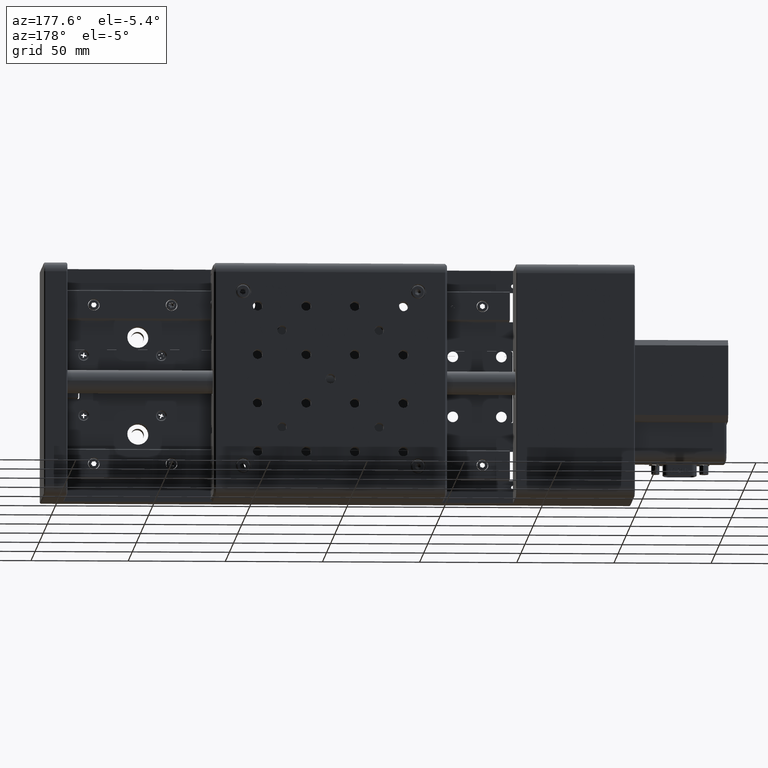
[diagram: clean part render]
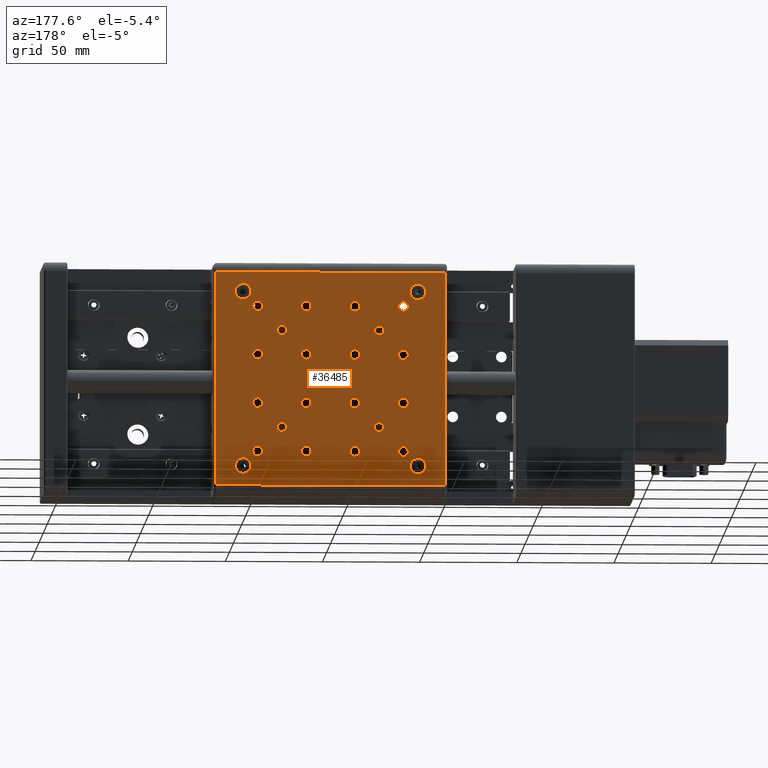
[diagram: same view with one face highlighted and labeled with its STEP entity id]
A machine part, auxiliary view. The second image highlights one B-rep face of the part: STEP entity #36485.
In plain terms, the highlighted planar face has unit normal (0, -1, 0).
Its self-contained STEP definition (entity closure, byte-faithful):
#300 = ORIENTED_EDGE ( 'NONE', *, *, #35962, .F. ) ;
#400 = ORIENTED_EDGE ( 'NONE', *, *, #23844, .F. ) ;
#439 = AXIS2_PLACEMENT_3D ( 'NONE', #16931, #5134, #2370 ) ;
#474 = CARTESIAN_POINT ( 'NONE',  ( 421.1596945975858300, 55.99999999999837300, 411.9433306992480700 ) ) ;
#515 = AXIS2_PLACEMENT_3D ( 'NONE', #19471, #13875, #7896 ) ;
#609 = CARTESIAN_POINT ( 'NONE',  ( 371.1596945975858800, 55.99999999999837300, 391.9433306992479500 ) ) ;
#612 = VERTEX_POINT ( 'NONE', #4855 ) ;
#703 = CARTESIAN_POINT ( 'NONE',  ( 363.6596945975858300, 55.99999999999839400, 471.9433306992480700 ) ) ;
#785 = CARTESIAN_POINT ( 'NONE',  ( 371.1596945975858300, 55.99999999999838700, 464.4433306992480100 ) ) ;
#941 = CIRCLE ( 'NONE', #29443, 2.500000000000002200 ) ;
#961 = EDGE_LOOP ( 'NONE', ( #26781, #31363 ) ) ;
#997 = ORIENTED_EDGE ( 'NONE', *, *, #7766, .T. ) ;
#1117 = DIRECTION ( 'NONE',  ( 0.0000000000000000000, 0.0000000000000000000, 1.000000000000000000 ) ) ;
#1133 = AXIS2_PLACEMENT_3D ( 'NONE', #26967, #18358, #35765 ) ;
#1262 = CARTESIAN_POINT ( 'NONE',  ( 371.1596945975858300, 55.99999999999838700, 436.9433306992480100 ) ) ;
#1485 = CARTESIAN_POINT ( 'NONE',  ( 446.1596945975858800, 55.99999999999838700, 461.9433306992479500 ) ) ;
#1613 = AXIS2_PLACEMENT_3D ( 'NONE', #14193, #34464, #32111 ) ;
#1804 = VERTEX_POINT ( 'NONE', #20664 ) ;
#1942 = CIRCLE ( 'NONE', #11330, 2.500000000000002200 ) ;
#1955 = DIRECTION ( 'NONE',  ( 0.0000000000000000000, 0.0000000000000000000, -1.000000000000000000 ) ) ;
#2019 = EDGE_CURVE ( 'NONE', #18841, #10620, #22187, .T. ) ;
#2284 = VERTEX_POINT ( 'NONE', #29094 ) ;
#2346 = DIRECTION ( 'NONE',  ( -1.498502485583768100E-025, 1.000000000000000000, -2.982914382744781000E-016 ) ) ;
#2370 = DIRECTION ( 'NONE',  ( 0.0000000000000000000, 0.0000000000000000000, -1.000000000000000000 ) ) ;
#2499 = ORIENTED_EDGE ( 'NONE', *, *, #14064, .F. ) ;
#2617 = AXIS2_PLACEMENT_3D ( 'NONE', #785, #6424, #15873 ) ;
#2635 = CIRCLE ( 'NONE', #14125, 2.500000000000002200 ) ;
#2643 = AXIS2_PLACEMENT_3D ( 'NONE', #4138, #7401, #16359 ) ;
#2780 = VERTEX_POINT ( 'NONE', #20351 ) ;
#2795 = CARTESIAN_POINT ( 'NONE',  ( 363.6596945975858300, 55.99999999999839400, 471.9433306992480700 ) ) ;
#2822 = EDGE_CURVE ( 'NONE', #30959, #28412, #28226, .T. ) ;
#2885 = CARTESIAN_POINT ( 'NONE',  ( 453.6596945975858300, 55.99999999999836600, 381.9433306992479500 ) ) ;
#2894 = EDGE_LOOP ( 'NONE', ( #32781, #20580 ) ) ;
#2914 = AXIS2_PLACEMENT_3D ( 'NONE', #8215, #11319, #37954 ) ;
#3088 = AXIS2_PLACEMENT_3D ( 'NONE', #15139, #6314, #21405 ) ;
#3186 = DIRECTION ( 'NONE',  ( -1.498502485583768100E-025, 1.000000000000000000, -2.982914382744781000E-016 ) ) ;
#3199 = FACE_BOUND ( 'NONE', #14497, .T. ) ;
#3356 = CARTESIAN_POINT ( 'NONE',  ( 421.1596945975858800, 55.99999999999837300, 386.9433306992480100 ) ) ;
#3547 = EDGE_LOOP ( 'NONE', ( #35625, #4966 ) ) ;
#3568 = EDGE_LOOP ( 'NONE', ( #6123, #9475 ) ) ;
#3835 = ORIENTED_EDGE ( 'NONE', *, *, #20638, .F. ) ;
#3902 = AXIS2_PLACEMENT_3D ( 'NONE', #37835, #25582, #17062 ) ;
#4066 = AXIS2_PLACEMENT_3D ( 'NONE', #703, #18288, #9683 ) ;
#4088 = LINE ( 'NONE', #14485, #33965 ) ;
#4138 = CARTESIAN_POINT ( 'NONE',  ( 408.6596945975858300, 55.99999999999838000, 426.9433306992480100 ) ) ;
#4624 = AXIS2_PLACEMENT_3D ( 'NONE', #23843, #38733, #32887 ) ;
#4810 = AXIS2_PLACEMENT_3D ( 'NONE', #34337, #7335, #37203 ) ;
#4855 = CARTESIAN_POINT ( 'NONE',  ( 421.1596945975858300, 55.99999999999837300, 416.9433306992480700 ) ) ;
#4907 = CIRCLE ( 'NONE', #27270, 2.500000000000002200 ) ;
#4966 = ORIENTED_EDGE ( 'NONE', *, *, #16405, .F. ) ;
#5050 = EDGE_CURVE ( 'NONE', #35119, #24108, #12709, .T. ) ;
#5134 = DIRECTION ( 'NONE',  ( -1.498502485583768100E-025, 1.000000000000000000, -2.982914382744781000E-016 ) ) ;
#5145 = EDGE_LOOP ( 'NONE', ( #13500, #23736, #37956, #997 ) ) ;
#5170 = EDGE_CURVE ( 'NONE', #14714, #13443, #16845, .T. ) ;
#5192 = AXIS2_PLACEMENT_3D ( 'NONE', #25855, #10992, #19849 ) ;
#5267 = CIRCLE ( 'NONE', #12450, 4.000000000000003600 ) ;
#5338 = VERTEX_POINT ( 'NONE', #6234 ) ;
#5566 = DIRECTION ( 'NONE',  ( 0.0000000000000000000, 0.0000000000000000000, -1.000000000000000000 ) ) ;
#5650 = EDGE_CURVE ( 'NONE', #13443, #14714, #31322, .T. ) ;
#5664 = EDGE_CURVE ( 'NONE', #11610, #10832, #36489, .T. ) ;
#5686 = CARTESIAN_POINT ( 'NONE',  ( 371.1596945975858300, 55.99999999999838700, 441.9433306992480100 ) ) ;
#5961 = VERTEX_POINT ( 'NONE', #19701 ) ;
#6025 = AXIS2_PLACEMENT_3D ( 'NONE', #26203, #29598, #11716 ) ;
#6123 = ORIENTED_EDGE ( 'NONE', *, *, #36187, .F. ) ;
#6234 = CARTESIAN_POINT ( 'NONE',  ( 453.6596945975858800, 55.99999999999839400, 467.9433306992480100 ) ) ;
#6258 = CIRCLE ( 'NONE', #26103, 2.500000000000002200 ) ;
#6314 = DIRECTION ( 'NONE',  ( -1.498502485583768100E-025, 1.000000000000000000, -2.982914382744781000E-016 ) ) ;
#6327 = CARTESIAN_POINT ( 'NONE',  ( 371.1596945975858300, 55.99999999999838700, 439.4433306992480100 ) ) ;
#6424 = DIRECTION ( 'NONE',  ( -1.498502485583768100E-025, 1.000000000000000000, -2.982914382744781000E-016 ) ) ;
#6429 = CARTESIAN_POINT ( 'NONE',  ( 421.1596945975858300, 55.99999999999838700, 466.9433306992480100 ) ) ;
#6430 = VERTEX_POINT ( 'NONE', #1262 ) ;
#6484 = VECTOR ( 'NONE', #13193, 1000.000000000000000 ) ;
#6692 = CARTESIAN_POINT ( 'NONE',  ( 446.1596945975858800, 55.99999999999838700, 439.4433306992480100 ) ) ;
#6885 = FACE_BOUND ( 'NONE', #12800, .T. ) ;
#7060 = CIRCLE ( 'NONE', #22941, 2.500000000000002200 ) ;
#7122 = ORIENTED_EDGE ( 'NONE', *, *, #29608, .F. ) ;
#7145 = CIRCLE ( 'NONE', #23028, 2.357426619191083100 ) ;
#7160 = VERTEX_POINT ( 'NONE', #10100 ) ;
#7209 = CARTESIAN_POINT ( 'NONE',  ( 446.1596945975858800, 55.99999999999837300, 411.9433306992480700 ) ) ;
#7214 = CARTESIAN_POINT ( 'NONE',  ( 408.6596945975858300, 55.99999999999839400, 481.9433306992480700 ) ) ;
#7335 = DIRECTION ( 'NONE',  ( -1.498502485583768100E-025, 1.000000000000000000, -2.982914382744781000E-016 ) ) ;
#7395 = LINE ( 'NONE', #7214, #6484 ) ;
#7401 = DIRECTION ( 'NONE',  ( 1.498502485583768100E-025, -1.000000000000000000, 2.982914382744780500E-016 ) ) ;
#7488 = AXIS2_PLACEMENT_3D ( 'NONE', #19296, #16046, #10455 ) ;
#7495 = EDGE_CURVE ( 'NONE', #8413, #9383, #13910, .T. ) ;
#7500 = VERTEX_POINT ( 'NONE', #28829 ) ;
#7540 = EDGE_CURVE ( 'NONE', #2780, #35252, #24603, .T. ) ;
#7634 = DIRECTION ( 'NONE',  ( -1.498502485583768100E-025, 1.000000000000000000, -2.982914382744781000E-016 ) ) ;
#7638 = ORIENTED_EDGE ( 'NONE', *, *, #18929, .F. ) ;
#7766 = EDGE_CURVE ( 'NONE', #10620, #35375, #4088, .T. ) ;
#7818 = FACE_BOUND ( 'NONE', #29293, .T. ) ;
#7896 = DIRECTION ( 'NONE',  ( 0.0000000000000000000, 0.0000000000000000000, -1.000000000000000000 ) ) ;
#7942 = VERTEX_POINT ( 'NONE', #474 ) ;
#8079 = CARTESIAN_POINT ( 'NONE',  ( 453.6596945975858300, 55.99999999999836600, 385.9433306992479500 ) ) ;
#8140 = CARTESIAN_POINT ( 'NONE',  ( 383.6596945975859400, 55.99999999999837300, 401.9433306992480100 ) ) ;
#8179 = CARTESIAN_POINT ( 'NONE',  ( 446.1596945975858800, 55.99999999999838700, 441.9433306992480100 ) ) ;
#8215 = CARTESIAN_POINT ( 'NONE',  ( 421.1596945975858300, 55.99999999999838700, 464.4433306992480100 ) ) ;
#8412 = CARTESIAN_POINT ( 'NONE',  ( 421.1596945975858300, 55.99999999999838700, 439.4433306992480100 ) ) ;
#8413 = VERTEX_POINT ( 'NONE', #19792 ) ;
#8494 = VERTEX_POINT ( 'NONE', #22934 ) ;
#8731 = FACE_BOUND ( 'NONE', #15018, .T. ) ;
#8746 = CIRCLE ( 'NONE', #6025, 4.000000000000003600 ) ;
#8835 = DIRECTION ( 'NONE',  ( 0.0000000000000000000, 0.0000000000000000000, -1.000000000000000000 ) ) ;
#8917 = AXIS2_PLACEMENT_3D ( 'NONE', #2795, #3186, #29886 ) ;
#9055 = DIRECTION ( 'NONE',  ( -1.498502485583768100E-025, 1.000000000000000000, -2.982914382744781000E-016 ) ) ;
#9099 = AXIS2_PLACEMENT_3D ( 'NONE', #30727, #21581, #25098 ) ;
#9206 = DIRECTION ( 'NONE',  ( -1.498502485583768100E-025, 1.000000000000000000, -2.982914382744781000E-016 ) ) ;
#9215 = FACE_BOUND ( 'NONE', #2894, .T. ) ;
#9383 = VERTEX_POINT ( 'NONE', #32640 ) ;
#9475 = ORIENTED_EDGE ( 'NONE', *, *, #10999, .F. ) ;
#9526 = AXIS2_PLACEMENT_3D ( 'NONE', #12623, #24838, #36524 ) ;
#9683 = DIRECTION ( 'NONE',  ( 0.0000000000000000000, 0.0000000000000000000, -1.000000000000000000 ) ) ;
#9875 = VERTEX_POINT ( 'NONE', #10570 ) ;
#10100 = CARTESIAN_POINT ( 'NONE',  ( 446.1596945975858800, 55.99999999999838700, 466.9433306992480100 ) ) ;
#10120 = CARTESIAN_POINT ( 'NONE',  ( 396.1596945975858300, 55.99999999999838700, 436.9433306992480100 ) ) ;
#10167 = DIRECTION ( 'NONE',  ( 0.0000000000000000000, 0.0000000000000000000, -1.000000000000000000 ) ) ;
#10179 = ORIENTED_EDGE ( 'NONE', *, *, #18427, .F. ) ;
#10348 = AXIS2_PLACEMENT_3D ( 'NONE', #24820, #36987, #1117 ) ;
#10358 = CIRCLE ( 'NONE', #25053, 2.500000000000002200 ) ;
#10455 = DIRECTION ( 'NONE',  ( 0.0000000000000000000, 0.0000000000000000000, -1.000000000000000000 ) ) ;
#10473 = CIRCLE ( 'NONE', #30594, 2.500000000000002200 ) ;
#10570 = CARTESIAN_POINT ( 'NONE',  ( 446.1596945975858800, 55.99999999999837300, 386.9433306992480700 ) ) ;
#10585 = CIRCLE ( 'NONE', #30227, 2.500000000000002200 ) ;
#10620 = VERTEX_POINT ( 'NONE', #14807 ) ;
#10704 = CIRCLE ( 'NONE', #515, 4.000000000000003600 ) ;
#10832 = VERTEX_POINT ( 'NONE', #21945 ) ;
#10836 = EDGE_LOOP ( 'NONE', ( #25904, #25177 ) ) ;
#10992 = DIRECTION ( 'NONE',  ( -1.498502485583768100E-025, 1.000000000000000000, -2.982914382744781000E-016 ) ) ;
#10999 = EDGE_CURVE ( 'NONE', #16741, #23189, #37555, .T. ) ;
#11044 = VERTEX_POINT ( 'NONE', #35993 ) ;
#11241 = VERTEX_POINT ( 'NONE', #31521 ) ;
#11312 = CIRCLE ( 'NONE', #32559, 2.500000000000002200 ) ;
#11319 = DIRECTION ( 'NONE',  ( -1.498502485583768100E-025, 1.000000000000000000, -2.982914382744781000E-016 ) ) ;
#11330 = AXIS2_PLACEMENT_3D ( 'NONE', #6327, #32932, #20764 ) ;
#11347 = DIRECTION ( 'NONE',  ( -1.498502485583768100E-025, 1.000000000000000000, -2.982914382744781000E-016 ) ) ;
#11376 = EDGE_LOOP ( 'NONE', ( #7638, #37787 ) ) ;
#11432 = CIRCLE ( 'NONE', #12599, 2.500000000000002200 ) ;
#11517 = FACE_BOUND ( 'NONE', #11376, .T. ) ;
#11610 = VERTEX_POINT ( 'NONE', #3356 ) ;
#11716 = DIRECTION ( 'NONE',  ( 0.0000000000000000000, 0.0000000000000000000, -1.000000000000000000 ) ) ;
#11824 = AXIS2_PLACEMENT_3D ( 'NONE', #20610, #26591, #30014 ) ;
#11915 = CIRCLE ( 'NONE', #30495, 2.500000000000002200 ) ;
#11980 = FACE_BOUND ( 'NONE', #29779, .T. ) ;
#12106 = ORIENTED_EDGE ( 'NONE', *, *, #24911, .F. ) ;
#12115 = ORIENTED_EDGE ( 'NONE', *, *, #13922, .F. ) ;
#12161 = EDGE_CURVE ( 'NONE', #15048, #18506, #26469, .T. ) ;
#12209 = AXIS2_PLACEMENT_3D ( 'NONE', #16148, #19251, #33928 ) ;
#12450 = AXIS2_PLACEMENT_3D ( 'NONE', #14471, #32259, #17858 ) ;
#12512 = DIRECTION ( 'NONE',  ( 0.0000000000000000000, 0.0000000000000000000, 1.000000000000000000 ) ) ;
#12599 = AXIS2_PLACEMENT_3D ( 'NONE', #19257, #28018, #10167 ) ;
#12623 = CARTESIAN_POINT ( 'NONE',  ( 383.6596945975858800, 55.99999999999838700, 451.9433306992478900 ) ) ;
#12709 = CIRCLE ( 'NONE', #4624, 2.500000000000002200 ) ;
#12711 = EDGE_CURVE ( 'NONE', #35375, #25752, #7395, .T. ) ;
#12800 = EDGE_LOOP ( 'NONE', ( #12973, #15930 ) ) ;
#12822 = AXIS2_PLACEMENT_3D ( 'NONE', #13494, #7634, #34408 ) ;
#12875 = CARTESIAN_POINT ( 'NONE',  ( 467.6596945975858300, 55.99999999999838000, 426.9433306992480100 ) ) ;
#12973 = ORIENTED_EDGE ( 'NONE', *, *, #28879, .F. ) ;
#13063 = CARTESIAN_POINT ( 'NONE',  ( 453.6596945975858300, 55.99999999999836600, 377.9433306992479500 ) ) ;
#13193 = DIRECTION ( 'NONE',  ( 1.000000000000000000, 1.496908828207086500E-025, -3.201528549886529400E-016 ) ) ;
#13443 = VERTEX_POINT ( 'NONE', #15471 ) ;
#13494 = CARTESIAN_POINT ( 'NONE',  ( 396.1596945975858300, 55.99999999999838700, 464.4433306992480100 ) ) ;
#13500 = ORIENTED_EDGE ( 'NONE', *, *, #12711, .T. ) ;
#13502 = EDGE_CURVE ( 'NONE', #36131, #19281, #13848, .T. ) ;
#13567 = CIRCLE ( 'NONE', #16199, 2.500000000000002200 ) ;
#13664 = EDGE_LOOP ( 'NONE', ( #2499, #32426 ) ) ;
#13683 = CIRCLE ( 'NONE', #3902, 2.500000000000002200 ) ;
#13735 = CIRCLE ( 'NONE', #2914, 2.500000000000002200 ) ;
#13848 = CIRCLE ( 'NONE', #12822, 2.500000000000002200 ) ;
#13875 = DIRECTION ( 'NONE',  ( -1.498502485583768100E-025, 1.000000000000000000, -2.982914382744781000E-016 ) ) ;
#13910 = CIRCLE ( 'NONE', #439, 2.500000000000002200 ) ;
#13922 = EDGE_CURVE ( 'NONE', #7500, #32818, #34844, .T. ) ;
#14064 = EDGE_CURVE ( 'NONE', #37301, #22597, #11432, .T. ) ;
#14125 = AXIS2_PLACEMENT_3D ( 'NONE', #14512, #20127, #17372 ) ;
#14193 = CARTESIAN_POINT ( 'NONE',  ( 453.6596945975858300, 55.99999999999836600, 381.9433306992479500 ) ) ;
#14238 = AXIS2_PLACEMENT_3D ( 'NONE', #23297, #2346, #16899 ) ;
#14244 = CARTESIAN_POINT ( 'NONE',  ( 446.1596945975858800, 55.99999999999838700, 464.4433306992480100 ) ) ;
#14471 = CARTESIAN_POINT ( 'NONE',  ( 453.6596945975858800, 55.99999999999839400, 471.9433306992480100 ) ) ;
#14485 = CARTESIAN_POINT ( 'NONE',  ( 349.6596945975858300, 55.99999999999838000, 426.9433306992480100 ) ) ;
#14497 = EDGE_LOOP ( 'NONE', ( #16616, #20037 ) ) ;
#14512 = CARTESIAN_POINT ( 'NONE',  ( 396.1596945975858300, 55.99999999999838700, 439.4433306992480100 ) ) ;
#14551 = CARTESIAN_POINT ( 'NONE',  ( 396.1596945975858300, 55.99999999999838700, 466.9433306992480100 ) ) ;
#14584 = DIRECTION ( 'NONE',  ( -1.498502485583768100E-025, 1.000000000000000000, -2.982914382744781000E-016 ) ) ;
#14595 = EDGE_LOOP ( 'NONE', ( #23077, #19880 ) ) ;
#14622 = DIRECTION ( 'NONE',  ( -1.498502485583768100E-025, 1.000000000000000000, -2.982914382744781000E-016 ) ) ;
#14625 = ORIENTED_EDGE ( 'NONE', *, *, #14633, .F. ) ;
#14629 = CARTESIAN_POINT ( 'NONE',  ( 446.1596945975858800, 55.99999999999837300, 389.4433306992480700 ) ) ;
#14633 = EDGE_CURVE ( 'NONE', #22904, #11241, #10473, .T. ) ;
#14642 = DIRECTION ( 'NONE',  ( 0.0000000000000000000, 0.0000000000000000000, 1.000000000000000000 ) ) ;
#14714 = VERTEX_POINT ( 'NONE', #16281 ) ;
#14783 = FACE_BOUND ( 'NONE', #19215, .T. ) ;
#14807 = CARTESIAN_POINT ( 'NONE',  ( 349.6596945975857700, 55.99999999999836600, 371.9433306992480700 ) ) ;
#14858 = EDGE_LOOP ( 'NONE', ( #29809, #35416 ) ) ;
#14943 = CARTESIAN_POINT ( 'NONE',  ( 396.1596945975858300, 55.99999999999838700, 439.4433306992480100 ) ) ;
#15018 = EDGE_LOOP ( 'NONE', ( #31971, #3835 ) ) ;
#15048 = VERTEX_POINT ( 'NONE', #20570 ) ;
#15053 = DIRECTION ( 'NONE',  ( 0.0000000000000000000, 0.0000000000000000000, -1.000000000000000000 ) ) ;
#15059 = EDGE_CURVE ( 'NONE', #33151, #24913, #32394, .T. ) ;
#15139 = CARTESIAN_POINT ( 'NONE',  ( 383.6596945975858800, 55.99999999999838700, 451.9433306992478900 ) ) ;
#15375 = CARTESIAN_POINT ( 'NONE',  ( 396.1596945975858300, 55.99999999999838700, 441.9433306992480100 ) ) ;
#15471 = CARTESIAN_POINT ( 'NONE',  ( 371.1596945975858300, 55.99999999999838700, 461.9433306992479500 ) ) ;
#15696 = AXIS2_PLACEMENT_3D ( 'NONE', #27977, #30090, #30868 ) ;
#15727 = FACE_BOUND ( 'NONE', #23838, .T. ) ;
#15851 = EDGE_CURVE ( 'NONE', #22597, #37301, #13735, .T. ) ;
#15873 = DIRECTION ( 'NONE',  ( 0.0000000000000000000, 0.0000000000000000000, 1.000000000000000000 ) ) ;
#15930 = ORIENTED_EDGE ( 'NONE', *, *, #34638, .F. ) ;
#16045 = ORIENTED_EDGE ( 'NONE', *, *, #21412, .F. ) ;
#16046 = DIRECTION ( 'NONE',  ( -1.498502485583768100E-025, 1.000000000000000000, -2.982914382744781000E-016 ) ) ;
#16148 = CARTESIAN_POINT ( 'NONE',  ( 446.1596945975858800, 55.99999999999838700, 439.4433306992480100 ) ) ;
#16199 = AXIS2_PLACEMENT_3D ( 'NONE', #14943, #17553, #21075 ) ;
#16203 = AXIS2_PLACEMENT_3D ( 'NONE', #35521, #11347, #35782 ) ;
#16241 = EDGE_LOOP ( 'NONE', ( #31313, #12115 ) ) ;
#16281 = CARTESIAN_POINT ( 'NONE',  ( 371.1596945975858300, 55.99999999999838700, 466.9433306992480100 ) ) ;
#16359 = DIRECTION ( 'NONE',  ( 3.201528549135804000E-016, 2.982914382744780500E-016, 1.000000000000000000 ) ) ;
#16405 = EDGE_CURVE ( 'NONE', #9383, #8413, #6258, .T. ) ;
#16534 = EDGE_CURVE ( 'NONE', #35252, #2780, #27188, .T. ) ;
#16616 = ORIENTED_EDGE ( 'NONE', *, *, #19548, .F. ) ;
#16652 = FACE_BOUND ( 'NONE', #13664, .T. ) ;
#16662 = ORIENTED_EDGE ( 'NONE', *, *, #30716, .F. ) ;
#16690 = DIRECTION ( 'NONE',  ( -1.498502485583768100E-025, 1.000000000000000000, -2.982914382744781000E-016 ) ) ;
#16741 = VERTEX_POINT ( 'NONE', #22452 ) ;
#16812 = DIRECTION ( 'NONE',  ( 0.0000000000000000000, 0.0000000000000000000, -1.000000000000000000 ) ) ;
#16845 = CIRCLE ( 'NONE', #2617, 2.500000000000002200 ) ;
#16891 = DIRECTION ( 'NONE',  ( 0.0000000000000000000, 0.0000000000000000000, 1.000000000000000000 ) ) ;
#16899 = DIRECTION ( 'NONE',  ( 0.0000000000000000000, 0.0000000000000000000, 1.000000000000000000 ) ) ;
#16931 = CARTESIAN_POINT ( 'NONE',  ( 421.1596945975858300, 55.99999999999838700, 439.4433306992480100 ) ) ;
#17054 = VERTEX_POINT ( 'NONE', #23986 ) ;
#17062 = DIRECTION ( 'NONE',  ( 0.0000000000000000000, 0.0000000000000000000, 1.000000000000000000 ) ) ;
#17124 = FACE_BOUND ( 'NONE', #14595, .T. ) ;
#17273 = CARTESIAN_POINT ( 'NONE',  ( 446.1596945975858800, 55.99999999999838700, 464.4433306992480100 ) ) ;
#17329 = AXIS2_PLACEMENT_3D ( 'NONE', #28189, #22712, #28056 ) ;
#17372 = DIRECTION ( 'NONE',  ( 0.0000000000000000000, 0.0000000000000000000, 1.000000000000000000 ) ) ;
#17422 = ORIENTED_EDGE ( 'NONE', *, *, #32706, .F. ) ;
#17553 = DIRECTION ( 'NONE',  ( -1.498502485583768100E-025, 1.000000000000000000, -2.982914382744781000E-016 ) ) ;
#17630 = VERTEX_POINT ( 'NONE', #10120 ) ;
#17636 = EDGE_CURVE ( 'NONE', #25752, #18841, #37936, .T. ) ;
#17752 = CIRCLE ( 'NONE', #38225, 2.500000000000002200 ) ;
#17768 = CARTESIAN_POINT ( 'NONE',  ( 421.1596945975858800, 55.99999999999837300, 389.4433306992480100 ) ) ;
#17858 = DIRECTION ( 'NONE',  ( 0.0000000000000000000, 0.0000000000000000000, -1.000000000000000000 ) ) ;
#17933 = ORIENTED_EDGE ( 'NONE', *, *, #37937, .F. ) ;
#17951 = CARTESIAN_POINT ( 'NONE',  ( 371.1596945975858300, 55.99999999999837300, 416.9433306992479500 ) ) ;
#18219 = CIRCLE ( 'NONE', #15696, 2.500000000000002200 ) ;
#18288 = DIRECTION ( 'NONE',  ( -1.498502485583768100E-025, 1.000000000000000000, -2.982914382744781000E-016 ) ) ;
#18358 = DIRECTION ( 'NONE',  ( -1.498502485583768100E-025, 1.000000000000000000, -2.982914382744781000E-016 ) ) ;
#18427 = EDGE_CURVE ( 'NONE', #2284, #34967, #33902, .T. ) ;
#18506 = VERTEX_POINT ( 'NONE', #33044 ) ;
#18676 = EDGE_LOOP ( 'NONE', ( #10179, #21532 ) ) ;
#18830 = CIRCLE ( 'NONE', #1613, 4.000000000000003600 ) ;
#18841 = VERTEX_POINT ( 'NONE', #29926 ) ;
#18900 = DIRECTION ( 'NONE',  ( -1.498502485583768100E-025, 1.000000000000000000, -2.982914382744781000E-016 ) ) ;
#18918 = EDGE_CURVE ( 'NONE', #10832, #11610, #11312, .T. ) ;
#18929 = EDGE_CURVE ( 'NONE', #30196, #5961, #7145, .T. ) ;
#19001 = AXIS2_PLACEMENT_3D ( 'NONE', #8140, #35430, #5566 ) ;
#19215 = EDGE_LOOP ( 'NONE', ( #17933, #24961 ) ) ;
#19251 = DIRECTION ( 'NONE',  ( -1.498502485583768100E-025, 1.000000000000000000, -2.982914382744781000E-016 ) ) ;
#19257 = CARTESIAN_POINT ( 'NONE',  ( 421.1596945975858300, 55.99999999999838700, 464.4433306992480100 ) ) ;
#19281 = VERTEX_POINT ( 'NONE', #14551 ) ;
#19296 = CARTESIAN_POINT ( 'NONE',  ( 433.6596945975858300, 55.99999999999838700, 451.9433306992480100 ) ) ;
#19366 = CARTESIAN_POINT ( 'NONE',  ( 396.1596945975858300, 55.99999999999837300, 411.9433306992480100 ) ) ;
#19390 = DIRECTION ( 'NONE',  ( -1.498502485583768100E-025, 1.000000000000000000, -2.982914382744781000E-016 ) ) ;
#19471 = CARTESIAN_POINT ( 'NONE',  ( 363.6596945975857700, 55.99999999999836600, 381.9433306992480100 ) ) ;
#19548 = EDGE_CURVE ( 'NONE', #5338, #1804, #5267, .T. ) ;
#19701 = CARTESIAN_POINT ( 'NONE',  ( 433.6596945975858300, 55.99999999999838700, 454.3007573184390800 ) ) ;
#19792 = CARTESIAN_POINT ( 'NONE',  ( 421.1596945975858300, 55.99999999999838700, 436.9433306992480100 ) ) ;
#19849 = DIRECTION ( 'NONE',  ( 0.0000000000000000000, 0.0000000000000000000, -1.000000000000000000 ) ) ;
#19880 = ORIENTED_EDGE ( 'NONE', *, *, #2822, .F. ) ;
#19910 = FACE_BOUND ( 'NONE', #10836, .T. ) ;
#19943 = FACE_BOUND ( 'NONE', #16241, .T. ) ;
#20037 = ORIENTED_EDGE ( 'NONE', *, *, #30231, .F. ) ;
#20086 = AXIS2_PLACEMENT_3D ( 'NONE', #26062, #16690, #16812 ) ;
#20127 = DIRECTION ( 'NONE',  ( -1.498502485583768100E-025, 1.000000000000000000, -2.982914382744781000E-016 ) ) ;
#20168 = EDGE_CURVE ( 'NONE', #35978, #17630, #13567, .T. ) ;
#20317 = EDGE_CURVE ( 'NONE', #28412, #30959, #18219, .T. ) ;
#20351 = CARTESIAN_POINT ( 'NONE',  ( 408.6596945975858300, 55.99999999999838000, 429.4433306992480100 ) ) ;
#20528 = DIRECTION ( 'NONE',  ( 0.0000000000000000000, 0.0000000000000000000, 1.000000000000000000 ) ) ;
#20539 = EDGE_LOOP ( 'NONE', ( #17422, #300 ) ) ;
#20570 = CARTESIAN_POINT ( 'NONE',  ( 383.6596945975858800, 55.99999999999838700, 454.3007573184389700 ) ) ;
#20576 = EDGE_CURVE ( 'NONE', #29913, #32745, #17752, .T. ) ;
#20580 = ORIENTED_EDGE ( 'NONE', *, *, #25458, .F. ) ;
#20596 = VERTEX_POINT ( 'NONE', #35171 ) ;
#20610 = CARTESIAN_POINT ( 'NONE',  ( 396.1596945975858800, 55.99999999999837300, 389.4433306992480100 ) ) ;
#20638 = EDGE_CURVE ( 'NONE', #17054, #9875, #941, .T. ) ;
#20640 = CARTESIAN_POINT ( 'NONE',  ( 396.1596945975858800, 55.99999999999837300, 386.9433306992480100 ) ) ;
#20659 = AXIS2_PLACEMENT_3D ( 'NONE', #20677, #9206, #20806 ) ;
#20664 = CARTESIAN_POINT ( 'NONE',  ( 453.6596945975858800, 55.99999999999839400, 475.9433306992480100 ) ) ;
#20677 = CARTESIAN_POINT ( 'NONE',  ( 363.6596945975857700, 55.99999999999836600, 381.9433306992480100 ) ) ;
#20764 = DIRECTION ( 'NONE',  ( 0.0000000000000000000, 0.0000000000000000000, 1.000000000000000000 ) ) ;
#20794 = CARTESIAN_POINT ( 'NONE',  ( 408.6596945975858300, 55.99999999999838000, 426.9433306992480100 ) ) ;
#20806 = DIRECTION ( 'NONE',  ( 0.0000000000000000000, 0.0000000000000000000, -1.000000000000000000 ) ) ;
#20847 = FACE_BOUND ( 'NONE', #3547, .T. ) ;
#21075 = DIRECTION ( 'NONE',  ( 0.0000000000000000000, 0.0000000000000000000, 1.000000000000000000 ) ) ;
#21259 = ORIENTED_EDGE ( 'NONE', *, *, #33192, .F. ) ;
#21319 = CIRCLE ( 'NONE', #4810, 2.500000000000002200 ) ;
#21405 = DIRECTION ( 'NONE',  ( 0.0000000000000000000, 0.0000000000000000000, 1.000000000000000000 ) ) ;
#21412 = EDGE_CURVE ( 'NONE', #32630, #20596, #10704, .T. ) ;
#21460 = CARTESIAN_POINT ( 'NONE',  ( 363.6596945975858300, 55.99999999999839400, 475.9433306992480700 ) ) ;
#21532 = ORIENTED_EDGE ( 'NONE', *, *, #32972, .F. ) ;
#21581 = DIRECTION ( 'NONE',  ( -1.498502485583768100E-025, 1.000000000000000000, -2.982914382744781000E-016 ) ) ;
#21786 = FACE_BOUND ( 'NONE', #18676, .T. ) ;
#21812 = EDGE_LOOP ( 'NONE', ( #24387, #32176 ) ) ;
#21821 = FACE_BOUND ( 'NONE', #26446, .T. ) ;
#21945 = CARTESIAN_POINT ( 'NONE',  ( 421.1596945975858800, 55.99999999999837300, 391.9433306992480100 ) ) ;
#22187 = LINE ( 'NONE', #28062, #27317 ) ;
#22254 = DIRECTION ( 'NONE',  ( 0.0000000000000000000, 0.0000000000000000000, 1.000000000000000000 ) ) ;
#22337 = EDGE_CURVE ( 'NONE', #19281, #36131, #21319, .T. ) ;
#22452 = CARTESIAN_POINT ( 'NONE',  ( 433.6596945975858300, 55.99999999999837300, 404.3007573184391400 ) ) ;
#22597 = VERTEX_POINT ( 'NONE', #6429 ) ;
#22712 = DIRECTION ( 'NONE',  ( -1.498502485583768100E-025, 1.000000000000000000, -2.982914382744781000E-016 ) ) ;
#22789 = DIRECTION ( 'NONE',  ( -1.498502485583768100E-025, 1.000000000000000000, -2.982914382744781000E-016 ) ) ;
#22904 = VERTEX_POINT ( 'NONE', #8179 ) ;
#22934 = CARTESIAN_POINT ( 'NONE',  ( 383.6596945975859400, 55.99999999999837300, 399.5859040800569300 ) ) ;
#22941 = AXIS2_PLACEMENT_3D ( 'NONE', #14244, #14622, #38008 ) ;
#23028 = AXIS2_PLACEMENT_3D ( 'NONE', #27423, #24541, #27799 ) ;
#23077 = ORIENTED_EDGE ( 'NONE', *, *, #20317, .F. ) ;
#23127 = CARTESIAN_POINT ( 'NONE',  ( 446.1596945975858800, 55.99999999999837300, 416.9433306992480700 ) ) ;
#23135 = ORIENTED_EDGE ( 'NONE', *, *, #5650, .F. ) ;
#23140 = CARTESIAN_POINT ( 'NONE',  ( 446.1596945975858800, 55.99999999999837300, 414.4433306992480700 ) ) ;
#23189 = VERTEX_POINT ( 'NONE', #33220 ) ;
#23297 = CARTESIAN_POINT ( 'NONE',  ( 433.6596945975858300, 55.99999999999837300, 401.9433306992480100 ) ) ;
#23515 = CIRCLE ( 'NONE', #4066, 4.000000000000003600 ) ;
#23599 = DIRECTION ( 'NONE',  ( 0.0000000000000000000, 0.0000000000000000000, 1.000000000000000000 ) ) ;
#23658 = FACE_BOUND ( 'NONE', #31203, .T. ) ;
#23736 = ORIENTED_EDGE ( 'NONE', *, *, #17636, .T. ) ;
#23838 = EDGE_LOOP ( 'NONE', ( #23135, #37009 ) ) ;
#23843 = CARTESIAN_POINT ( 'NONE',  ( 396.1596945975858300, 55.99999999999837300, 414.4433306992480100 ) ) ;
#23844 = EDGE_CURVE ( 'NONE', #612, #7942, #27744, .T. ) ;
#23986 = CARTESIAN_POINT ( 'NONE',  ( 446.1596945975858800, 55.99999999999837300, 391.9433306992480700 ) ) ;
#24046 = DIRECTION ( 'NONE',  ( 0.0000000000000000000, 0.0000000000000000000, 1.000000000000000000 ) ) ;
#24108 = VERTEX_POINT ( 'NONE', #19366 ) ;
#24161 = CIRCLE ( 'NONE', #17329, 2.500000000000002200 ) ;
#24387 = ORIENTED_EDGE ( 'NONE', *, *, #13502, .F. ) ;
#24389 = VECTOR ( 'NONE', #34661, 1000.000000000000000 ) ;
#24454 = EDGE_CURVE ( 'NONE', #24913, #33151, #18830, .T. ) ;
#24541 = DIRECTION ( 'NONE',  ( -1.498502485583768100E-025, 1.000000000000000000, -2.982914382744781000E-016 ) ) ;
#24603 = CIRCLE ( 'NONE', #5192, 2.500000000000002200 ) ;
#24695 = CIRCLE ( 'NONE', #9526, 2.357426619191083100 ) ;
#24820 = CARTESIAN_POINT ( 'NONE',  ( 421.1596945975858800, 55.99999999999837300, 389.4433306992480100 ) ) ;
#24838 = DIRECTION ( 'NONE',  ( -1.498502485583768100E-025, 1.000000000000000000, -2.982914382744781000E-016 ) ) ;
#24843 = AXIS2_PLACEMENT_3D ( 'NONE', #20794, #9055, #15053 ) ;
#24864 = EDGE_CURVE ( 'NONE', #32818, #7500, #34258, .T. ) ;
#24911 = EDGE_CURVE ( 'NONE', #7942, #612, #13683, .T. ) ;
#24913 = VERTEX_POINT ( 'NONE', #8079 ) ;
#24946 = CIRCLE ( 'NONE', #32060, 2.500000000000002200 ) ;
#24961 = ORIENTED_EDGE ( 'NONE', *, *, #20168, .F. ) ;
#24983 = CARTESIAN_POINT ( 'NONE',  ( 363.6596945975857700, 55.99999999999836600, 377.9433306992480100 ) ) ;
#25053 = AXIS2_PLACEMENT_3D ( 'NONE', #25668, #19390, #31157 ) ;
#25098 = DIRECTION ( 'NONE',  ( 0.0000000000000000000, 0.0000000000000000000, 1.000000000000000000 ) ) ;
#25177 = ORIENTED_EDGE ( 'NONE', *, *, #12161, .F. ) ;
#25236 = PLANE ( 'NONE',  #2643 ) ;
#25458 = EDGE_CURVE ( 'NONE', #26259, #11044, #24161, .T. ) ;
#25549 = VERTEX_POINT ( 'NONE', #1485 ) ;
#25582 = DIRECTION ( 'NONE',  ( -1.498502485583768100E-025, 1.000000000000000000, -2.982914382744781000E-016 ) ) ;
#25668 = CARTESIAN_POINT ( 'NONE',  ( 371.1596945975858300, 55.99999999999837300, 414.4433306992479500 ) ) ;
#25737 = ORIENTED_EDGE ( 'NONE', *, *, #20576, .F. ) ;
#25752 = VERTEX_POINT ( 'NONE', #32774 ) ;
#25793 = CARTESIAN_POINT ( 'NONE',  ( 371.1596945975858300, 55.99999999999838700, 439.4433306992480100 ) ) ;
#25855 = CARTESIAN_POINT ( 'NONE',  ( 408.6596945975858300, 55.99999999999838000, 426.9433306992480100 ) ) ;
#25896 = EDGE_LOOP ( 'NONE', ( #7122, #14625 ) ) ;
#25904 = ORIENTED_EDGE ( 'NONE', *, *, #32531, .F. ) ;
#25912 = ORIENTED_EDGE ( 'NONE', *, *, #35358, .F. ) ;
#25931 = VERTEX_POINT ( 'NONE', #36687 ) ;
#26037 = DIRECTION ( 'NONE',  ( -1.498502485583768100E-025, 1.000000000000000000, -2.982914382744781000E-016 ) ) ;
#26062 = CARTESIAN_POINT ( 'NONE',  ( 396.1596945975858800, 55.99999999999837300, 389.4433306992480100 ) ) ;
#26103 = AXIS2_PLACEMENT_3D ( 'NONE', #8412, #35315, #32190 ) ;
#26203 = CARTESIAN_POINT ( 'NONE',  ( 453.6596945975858800, 55.99999999999839400, 471.9433306992480100 ) ) ;
#26259 = VERTEX_POINT ( 'NONE', #17951 ) ;
#26446 = EDGE_LOOP ( 'NONE', ( #16045, #30336 ) ) ;
#26469 = CIRCLE ( 'NONE', #3088, 2.357426619191083100 ) ;
#26534 = DIRECTION ( 'NONE',  ( -1.498502485583768100E-025, 1.000000000000000000, -2.982914382744781000E-016 ) ) ;
#26591 = DIRECTION ( 'NONE',  ( -1.498502485583768100E-025, 1.000000000000000000, -2.982914382744781000E-016 ) ) ;
#26672 = DIRECTION ( 'NONE',  ( -1.498502485583768100E-025, 1.000000000000000000, -2.982914382744781000E-016 ) ) ;
#26781 = ORIENTED_EDGE ( 'NONE', *, *, #16534, .F. ) ;
#26938 = FACE_BOUND ( 'NONE', #14858, .T. ) ;
#26967 = CARTESIAN_POINT ( 'NONE',  ( 383.6596945975859400, 55.99999999999837300, 401.9433306992480100 ) ) ;
#27032 = DIRECTION ( 'NONE',  ( -1.498502485583768100E-025, 1.000000000000000000, -2.982914382744781000E-016 ) ) ;
#27188 = CIRCLE ( 'NONE', #24843, 2.500000000000002200 ) ;
#27236 = ORIENTED_EDGE ( 'NONE', *, *, #33290, .F. ) ;
#27270 = AXIS2_PLACEMENT_3D ( 'NONE', #29332, #14584, #23599 ) ;
#27297 = CIRCLE ( 'NONE', #1133, 2.357426619191027600 ) ;
#27317 = VECTOR ( 'NONE', #27675, 1000.000000000000000 ) ;
#27338 = AXIS2_PLACEMENT_3D ( 'NONE', #28257, #31537, #22254 ) ;
#27423 = CARTESIAN_POINT ( 'NONE',  ( 433.6596945975858300, 55.99999999999838700, 451.9433306992480100 ) ) ;
#27675 = DIRECTION ( 'NONE',  ( -1.000000000000000000, -1.496908828207086500E-025, 3.201528549886529400E-016 ) ) ;
#27744 = CIRCLE ( 'NONE', #30774, 2.500000000000002200 ) ;
#27799 = DIRECTION ( 'NONE',  ( 0.0000000000000000000, 0.0000000000000000000, -1.000000000000000000 ) ) ;
#27838 = FACE_BOUND ( 'NONE', #21812, .T. ) ;
#27977 = CARTESIAN_POINT ( 'NONE',  ( 371.1596945975858800, 55.99999999999837300, 389.4433306992479500 ) ) ;
#28018 = DIRECTION ( 'NONE',  ( -1.498502485583768100E-025, 1.000000000000000000, -2.982914382744781000E-016 ) ) ;
#28056 = DIRECTION ( 'NONE',  ( 0.0000000000000000000, 0.0000000000000000000, -1.000000000000000000 ) ) ;
#28062 = CARTESIAN_POINT ( 'NONE',  ( 408.6596945975858300, 55.99999999999836600, 371.9433306992480700 ) ) ;
#28113 = CARTESIAN_POINT ( 'NONE',  ( 396.1596945975858300, 55.99999999999838700, 461.9433306992479500 ) ) ;
#28189 = CARTESIAN_POINT ( 'NONE',  ( 371.1596945975858300, 55.99999999999837300, 414.4433306992479500 ) ) ;
#28226 = CIRCLE ( 'NONE', #16203, 2.500000000000002200 ) ;
#28257 = CARTESIAN_POINT ( 'NONE',  ( 433.6596945975858300, 55.99999999999837300, 401.9433306992480100 ) ) ;
#28365 = EDGE_CURVE ( 'NONE', #20596, #32630, #33911, .T. ) ;
#28412 = VERTEX_POINT ( 'NONE', #30078 ) ;
#28534 = ORIENTED_EDGE ( 'NONE', *, *, #5050, .F. ) ;
#28829 = CARTESIAN_POINT ( 'NONE',  ( 396.1596945975858800, 55.99999999999837300, 391.9433306992480100 ) ) ;
#28879 = EDGE_CURVE ( 'NONE', #25549, #7160, #7060, .T. ) ;
#29093 = DIRECTION ( 'NONE',  ( 3.201528549135804000E-016, 2.982914382744780500E-016, 1.000000000000000000 ) ) ;
#29094 = CARTESIAN_POINT ( 'NONE',  ( 363.6596945975858300, 55.99999999999839400, 467.9433306992480700 ) ) ;
#29111 = CARTESIAN_POINT ( 'NONE',  ( 408.6596945975858300, 55.99999999999838000, 424.4433306992480100 ) ) ;
#29261 = FACE_BOUND ( 'NONE', #25896, .T. ) ;
#29293 = EDGE_LOOP ( 'NONE', ( #25737, #27236 ) ) ;
#29332 = CARTESIAN_POINT ( 'NONE',  ( 446.1596945975858800, 55.99999999999837300, 414.4433306992480700 ) ) ;
#29443 = AXIS2_PLACEMENT_3D ( 'NONE', #35693, #27032, #24046 ) ;
#29598 = DIRECTION ( 'NONE',  ( -1.498502485583768100E-025, 1.000000000000000000, -2.982914382744781000E-016 ) ) ;
#29608 = EDGE_CURVE ( 'NONE', #11241, #22904, #37282, .T. ) ;
#29779 = EDGE_LOOP ( 'NONE', ( #33953, #37237 ) ) ;
#29809 = ORIENTED_EDGE ( 'NONE', *, *, #15059, .F. ) ;
#29886 = DIRECTION ( 'NONE',  ( 0.0000000000000000000, 0.0000000000000000000, -1.000000000000000000 ) ) ;
#29913 = VERTEX_POINT ( 'NONE', #7209 ) ;
#29919 = EDGE_CURVE ( 'NONE', #5961, #30196, #33072, .T. ) ;
#29926 = CARTESIAN_POINT ( 'NONE',  ( 467.6596945975858300, 55.99999999999836600, 371.9433306992480100 ) ) ;
#30014 = DIRECTION ( 'NONE',  ( 0.0000000000000000000, 0.0000000000000000000, -1.000000000000000000 ) ) ;
#30078 = CARTESIAN_POINT ( 'NONE',  ( 371.1596945975858800, 55.99999999999837300, 386.9433306992479500 ) ) ;
#30090 = DIRECTION ( 'NONE',  ( -1.498502485583768100E-025, 1.000000000000000000, -2.982914382744781000E-016 ) ) ;
#30196 = VERTEX_POINT ( 'NONE', #38118 ) ;
#30227 = AXIS2_PLACEMENT_3D ( 'NONE', #25793, #22789, #16891 ) ;
#30231 = EDGE_CURVE ( 'NONE', #1804, #5338, #8746, .T. ) ;
#30336 = ORIENTED_EDGE ( 'NONE', *, *, #28365, .F. ) ;
#30405 = DIRECTION ( 'NONE',  ( 0.0000000000000000000, 0.0000000000000000000, -1.000000000000000000 ) ) ;
#30495 = AXIS2_PLACEMENT_3D ( 'NONE', #14629, #35550, #36072 ) ;
#30512 = CARTESIAN_POINT ( 'NONE',  ( 421.1596945975858300, 55.99999999999838700, 461.9433306992479500 ) ) ;
#30594 = AXIS2_PLACEMENT_3D ( 'NONE', #6692, #18900, #30405 ) ;
#30716 = EDGE_CURVE ( 'NONE', #6430, #31792, #10585, .T. ) ;
#30727 = CARTESIAN_POINT ( 'NONE',  ( 371.1596945975858300, 55.99999999999838700, 464.4433306992480100 ) ) ;
#30774 = AXIS2_PLACEMENT_3D ( 'NONE', #36651, #26534, #12512 ) ;
#30868 = DIRECTION ( 'NONE',  ( 0.0000000000000000000, 0.0000000000000000000, -1.000000000000000000 ) ) ;
#30947 = EDGE_LOOP ( 'NONE', ( #21259, #28534 ) ) ;
#30959 = VERTEX_POINT ( 'NONE', #609 ) ;
#31157 = DIRECTION ( 'NONE',  ( 0.0000000000000000000, 0.0000000000000000000, -1.000000000000000000 ) ) ;
#31203 = EDGE_LOOP ( 'NONE', ( #16662, #25912 ) ) ;
#31313 = ORIENTED_EDGE ( 'NONE', *, *, #24864, .F. ) ;
#31322 = CIRCLE ( 'NONE', #9099, 2.500000000000002200 ) ;
#31363 = ORIENTED_EDGE ( 'NONE', *, *, #7540, .F. ) ;
#31462 = EDGE_CURVE ( 'NONE', #9875, #17054, #11915, .T. ) ;
#31521 = CARTESIAN_POINT ( 'NONE',  ( 446.1596945975858800, 55.99999999999838700, 436.9433306992480100 ) ) ;
#31537 = DIRECTION ( 'NONE',  ( -1.498502485583768100E-025, 1.000000000000000000, -2.982914382744781000E-016 ) ) ;
#31726 = DIRECTION ( 'NONE',  ( -1.498502485583768100E-025, 1.000000000000000000, -2.982914382744781000E-016 ) ) ;
#31792 = VERTEX_POINT ( 'NONE', #5686 ) ;
#31867 = CIRCLE ( 'NONE', #32584, 2.500000000000002200 ) ;
#31971 = ORIENTED_EDGE ( 'NONE', *, *, #31462, .F. ) ;
#32060 = AXIS2_PLACEMENT_3D ( 'NONE', #34730, #31726, #37589 ) ;
#32111 = DIRECTION ( 'NONE',  ( 0.0000000000000000000, 0.0000000000000000000, -1.000000000000000000 ) ) ;
#32176 = ORIENTED_EDGE ( 'NONE', *, *, #22337, .F. ) ;
#32190 = DIRECTION ( 'NONE',  ( 0.0000000000000000000, 0.0000000000000000000, -1.000000000000000000 ) ) ;
#32259 = DIRECTION ( 'NONE',  ( -1.498502485583768100E-025, 1.000000000000000000, -2.982914382744781000E-016 ) ) ;
#32394 = CIRCLE ( 'NONE', #33633, 4.000000000000003600 ) ;
#32424 = CIRCLE ( 'NONE', #27338, 2.357426619191083100 ) ;
#32426 = ORIENTED_EDGE ( 'NONE', *, *, #15851, .F. ) ;
#32531 = EDGE_CURVE ( 'NONE', #18506, #15048, #24695, .T. ) ;
#32559 = AXIS2_PLACEMENT_3D ( 'NONE', #17768, #32949, #14642 ) ;
#32584 = AXIS2_PLACEMENT_3D ( 'NONE', #17273, #26037, #1955 ) ;
#32630 = VERTEX_POINT ( 'NONE', #24983 ) ;
#32640 = CARTESIAN_POINT ( 'NONE',  ( 421.1596945975858300, 55.99999999999838700, 441.9433306992480100 ) ) ;
#32706 = EDGE_CURVE ( 'NONE', #8494, #25931, #34529, .T. ) ;
#32745 = VERTEX_POINT ( 'NONE', #23127 ) ;
#32774 = CARTESIAN_POINT ( 'NONE',  ( 467.6596945975858800, 55.99999999999839400, 481.9433306992480700 ) ) ;
#32781 = ORIENTED_EDGE ( 'NONE', *, *, #34518, .F. ) ;
#32818 = VERTEX_POINT ( 'NONE', #20640 ) ;
#32887 = DIRECTION ( 'NONE',  ( 0.0000000000000000000, 0.0000000000000000000, -1.000000000000000000 ) ) ;
#32932 = DIRECTION ( 'NONE',  ( -1.498502485583768100E-025, 1.000000000000000000, -2.982914382744781000E-016 ) ) ;
#32949 = DIRECTION ( 'NONE',  ( -1.498502485583768100E-025, 1.000000000000000000, -2.982914382744781000E-016 ) ) ;
#32972 = EDGE_CURVE ( 'NONE', #34967, #2284, #23515, .T. ) ;
#33044 = CARTESIAN_POINT ( 'NONE',  ( 383.6596945975858800, 55.99999999999838700, 449.5859040800568200 ) ) ;
#33072 = CIRCLE ( 'NONE', #7488, 2.357426619191083100 ) ;
#33151 = VERTEX_POINT ( 'NONE', #13063 ) ;
#33192 = EDGE_CURVE ( 'NONE', #24108, #35119, #24946, .T. ) ;
#33220 = CARTESIAN_POINT ( 'NONE',  ( 433.6596945975858300, 55.99999999999837300, 399.5859040800569300 ) ) ;
#33290 = EDGE_CURVE ( 'NONE', #32745, #29913, #4907, .T. ) ;
#33497 = FACE_OUTER_BOUND ( 'NONE', #5145, .T. ) ;
#33633 = AXIS2_PLACEMENT_3D ( 'NONE', #2885, #26672, #8835 ) ;
#33902 = CIRCLE ( 'NONE', #8917, 4.000000000000003600 ) ;
#33911 = CIRCLE ( 'NONE', #20659, 4.000000000000003600 ) ;
#33928 = DIRECTION ( 'NONE',  ( 0.0000000000000000000, 0.0000000000000000000, -1.000000000000000000 ) ) ;
#33953 = ORIENTED_EDGE ( 'NONE', *, *, #5664, .F. ) ;
#33965 = VECTOR ( 'NONE', #29093, 1000.000000000000000 ) ;
#34250 = CARTESIAN_POINT ( 'NONE',  ( 396.1596945975858300, 55.99999999999837300, 416.9433306992480100 ) ) ;
#34258 = CIRCLE ( 'NONE', #20086, 2.500000000000002200 ) ;
#34337 = CARTESIAN_POINT ( 'NONE',  ( 396.1596945975858300, 55.99999999999838700, 464.4433306992480100 ) ) ;
#34372 = EDGE_LOOP ( 'NONE', ( #12106, #400 ) ) ;
#34408 = DIRECTION ( 'NONE',  ( 0.0000000000000000000, 0.0000000000000000000, 1.000000000000000000 ) ) ;
#34464 = DIRECTION ( 'NONE',  ( -1.498502485583768100E-025, 1.000000000000000000, -2.982914382744781000E-016 ) ) ;
#34518 = EDGE_CURVE ( 'NONE', #11044, #26259, #10358, .T. ) ;
#34529 = CIRCLE ( 'NONE', #19001, 2.357426619191027600 ) ;
#34638 = EDGE_CURVE ( 'NONE', #7160, #25549, #31867, .T. ) ;
#34661 = DIRECTION ( 'NONE',  ( -3.201528549135804000E-016, -2.982914382744780500E-016, -1.000000000000000000 ) ) ;
#34730 = CARTESIAN_POINT ( 'NONE',  ( 396.1596945975858300, 55.99999999999837300, 414.4433306992480100 ) ) ;
#34844 = CIRCLE ( 'NONE', #11824, 2.500000000000002200 ) ;
#34896 = FACE_BOUND ( 'NONE', #3568, .T. ) ;
#34967 = VERTEX_POINT ( 'NONE', #21460 ) ;
#35119 = VERTEX_POINT ( 'NONE', #34250 ) ;
#35171 = CARTESIAN_POINT ( 'NONE',  ( 363.6596945975857700, 55.99999999999836600, 385.9433306992480100 ) ) ;
#35252 = VERTEX_POINT ( 'NONE', #29111 ) ;
#35308 = DIRECTION ( 'NONE',  ( -1.498502485583768100E-025, 1.000000000000000000, -2.982914382744781000E-016 ) ) ;
#35315 = DIRECTION ( 'NONE',  ( -1.498502485583768100E-025, 1.000000000000000000, -2.982914382744781000E-016 ) ) ;
#35358 = EDGE_CURVE ( 'NONE', #31792, #6430, #1942, .T. ) ;
#35367 = FACE_BOUND ( 'NONE', #961, .T. ) ;
#35375 = VERTEX_POINT ( 'NONE', #35940 ) ;
#35416 = ORIENTED_EDGE ( 'NONE', *, *, #24454, .F. ) ;
#35430 = DIRECTION ( 'NONE',  ( -1.498502485583768100E-025, 1.000000000000000000, -2.982914382744781000E-016 ) ) ;
#35521 = CARTESIAN_POINT ( 'NONE',  ( 371.1596945975858800, 55.99999999999837300, 389.4433306992479500 ) ) ;
#35550 = DIRECTION ( 'NONE',  ( -1.498502485583768100E-025, 1.000000000000000000, -2.982914382744781000E-016 ) ) ;
#35625 = ORIENTED_EDGE ( 'NONE', *, *, #7495, .F. ) ;
#35693 = CARTESIAN_POINT ( 'NONE',  ( 446.1596945975858800, 55.99999999999837300, 389.4433306992480700 ) ) ;
#35765 = DIRECTION ( 'NONE',  ( 0.0000000000000000000, 0.0000000000000000000, -1.000000000000000000 ) ) ;
#35782 = DIRECTION ( 'NONE',  ( 0.0000000000000000000, 0.0000000000000000000, -1.000000000000000000 ) ) ;
#35831 = FACE_BOUND ( 'NONE', #30947, .T. ) ;
#35940 = CARTESIAN_POINT ( 'NONE',  ( 349.6596945975858300, 55.99999999999839400, 481.9433306992481200 ) ) ;
#35962 = EDGE_CURVE ( 'NONE', #25931, #8494, #27297, .T. ) ;
#35978 = VERTEX_POINT ( 'NONE', #15375 ) ;
#35993 = CARTESIAN_POINT ( 'NONE',  ( 371.1596945975858300, 55.99999999999837300, 411.9433306992479500 ) ) ;
#36072 = DIRECTION ( 'NONE',  ( 0.0000000000000000000, 0.0000000000000000000, 1.000000000000000000 ) ) ;
#36131 = VERTEX_POINT ( 'NONE', #28113 ) ;
#36187 = EDGE_CURVE ( 'NONE', #23189, #16741, #32424, .T. ) ;
#36333 = FACE_BOUND ( 'NONE', #34372, .T. ) ;
#36485 = ADVANCED_FACE ( 'NONE', ( #26938, #3199, #21821, #19943, #17124, #9215, #35831, #14783, #23658, #20847, #29261, #6885, #16652, #27838, #15727, #36767, #19910, #34896, #11517, #36333, #7818, #8731, #11980, #35367, #33497, #21786 ), #25236, .F. ) ;
#36489 = CIRCLE ( 'NONE', #10348, 2.500000000000002200 ) ;
#36524 = DIRECTION ( 'NONE',  ( 0.0000000000000000000, 0.0000000000000000000, 1.000000000000000000 ) ) ;
#36651 = CARTESIAN_POINT ( 'NONE',  ( 421.1596945975858300, 55.99999999999837300, 414.4433306992480700 ) ) ;
#36687 = CARTESIAN_POINT ( 'NONE',  ( 383.6596945975859400, 55.99999999999837300, 404.3007573184390300 ) ) ;
#36767 = FACE_BOUND ( 'NONE', #20539, .T. ) ;
#36987 = DIRECTION ( 'NONE',  ( -1.498502485583768100E-025, 1.000000000000000000, -2.982914382744781000E-016 ) ) ;
#37009 = ORIENTED_EDGE ( 'NONE', *, *, #5170, .F. ) ;
#37203 = DIRECTION ( 'NONE',  ( 0.0000000000000000000, 0.0000000000000000000, 1.000000000000000000 ) ) ;
#37237 = ORIENTED_EDGE ( 'NONE', *, *, #18918, .F. ) ;
#37282 = CIRCLE ( 'NONE', #12209, 2.500000000000002200 ) ;
#37301 = VERTEX_POINT ( 'NONE', #30512 ) ;
#37555 = CIRCLE ( 'NONE', #14238, 2.357426619191083100 ) ;
#37589 = DIRECTION ( 'NONE',  ( 0.0000000000000000000, 0.0000000000000000000, -1.000000000000000000 ) ) ;
#37787 = ORIENTED_EDGE ( 'NONE', *, *, #29919, .F. ) ;
#37835 = CARTESIAN_POINT ( 'NONE',  ( 421.1596945975858300, 55.99999999999837300, 414.4433306992480700 ) ) ;
#37937 = EDGE_CURVE ( 'NONE', #17630, #35978, #2635, .T. ) ;
#37936 = LINE ( 'NONE', #12875, #24389 ) ;
#37954 = DIRECTION ( 'NONE',  ( 0.0000000000000000000, 0.0000000000000000000, -1.000000000000000000 ) ) ;
#37956 = ORIENTED_EDGE ( 'NONE', *, *, #2019, .T. ) ;
#38008 = DIRECTION ( 'NONE',  ( 0.0000000000000000000, 0.0000000000000000000, -1.000000000000000000 ) ) ;
#38118 = CARTESIAN_POINT ( 'NONE',  ( 433.6596945975858300, 55.99999999999838700, 449.5859040800569300 ) ) ;
#38225 = AXIS2_PLACEMENT_3D ( 'NONE', #23140, #35308, #20528 ) ;
#38733 = DIRECTION ( 'NONE',  ( -1.498502485583768100E-025, 1.000000000000000000, -2.982914382744781000E-016 ) ) ;